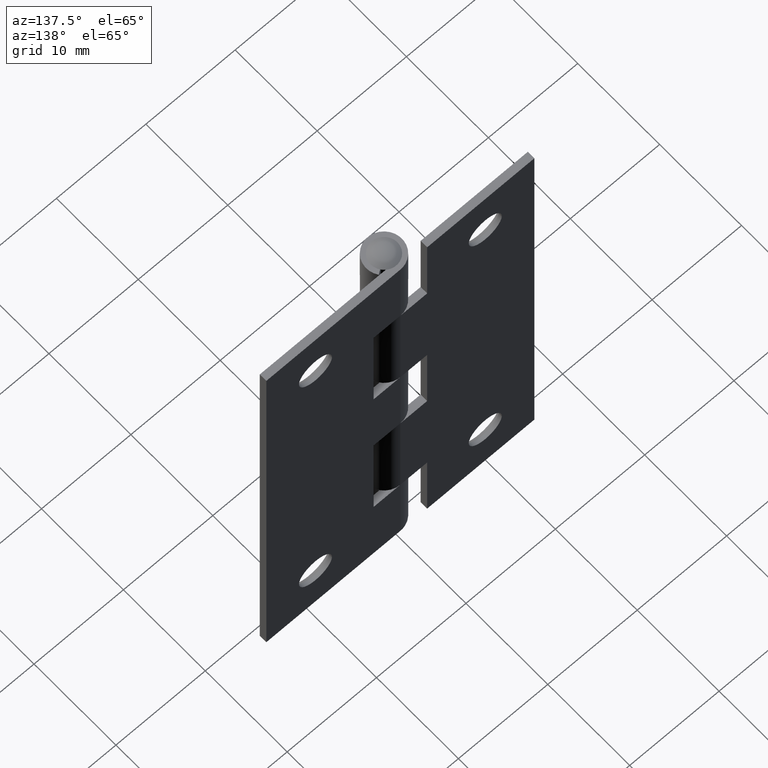
[diagram: clean part render]
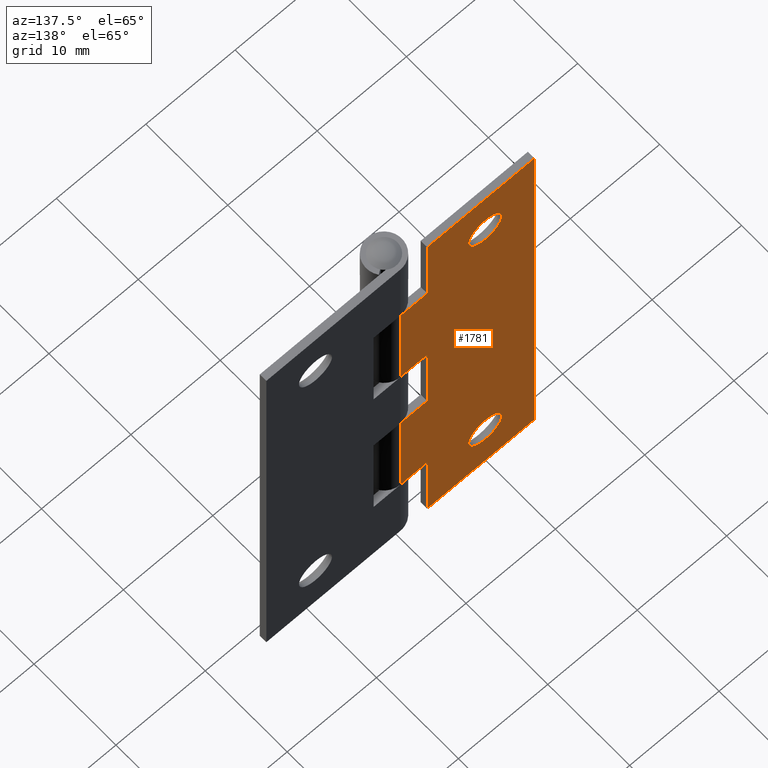
[diagram: same view with one face highlighted and labeled with its STEP entity id]
A machine part, auxiliary view. The second image highlights one B-rep face of the part: STEP entity #1781.
In plain terms, the highlighted face is a freeform B-spline surface patch.
Its self-contained STEP definition (entity closure, byte-faithful):
#396=CARTESIAN_POINT('',(-7.653450622936351,2.000000000008840,45.112939798307671));
#397=VERTEX_POINT('',#396);
#398=CARTESIAN_POINT('',(-9.500000000011600,2.000000000008840,43.149999999881658));
#399=VERTEX_POINT('',#398);
#400=CARTESIAN_POINT('',(-7.653450622936350,2.000000000008841,45.112939798307671));
#401=CARTESIAN_POINT('',(-7.650000000000010,2.000000000008840,45.056522612133499));
#402=CARTESIAN_POINT('',(-7.650000000000010,2.000000000008840,44.999999999893248));
#403=CARTESIAN_POINT('',(-7.650000000000008,2.000000000008840,43.149999999881665));
#404=CARTESIAN_POINT('',(-9.500000000011600,2.000000000008840,43.149999999881658));
#412=(BOUNDED_CURVE()B_SPLINE_CURVE(2,(#400,#401,#402,#403,#404),.UNSPECIFIED.,.F.,.U.)B_SPLINE_CURVE_WITH_KNOTS((3,2,3),(0.239332962216344,0.250000000000000,0.500000000000000),.UNSPECIFIED.)CURVE()GEOMETRIC_REPRESENTATION_ITEM()RATIONAL_B_SPLINE_CURVE((0.976072041618283,0.987502787873361,1.0,0.707106781186548,1.0))REPRESENTATION_ITEM(''));
#413=EDGE_CURVE('',#397,#399,#412,.T.);
#415=CARTESIAN_POINT('',(-11.346549377086850,2.000000000008840,44.887060201478832));
#416=VERTEX_POINT('',#415);
#417=CARTESIAN_POINT('',(-9.500000000011600,2.000000000008840,43.149999999881658));
#418=CARTESIAN_POINT('',(-11.240306223539113,2.000000000008840,43.149999999881658));
#419=CARTESIAN_POINT('',(-11.346549377086848,2.000000000008840,44.887060201478839));
#427=(BOUNDED_CURVE()B_SPLINE_CURVE(2,(#417,#418,#419),.UNSPECIFIED.,.F.,.U.)B_SPLINE_CURVE_WITH_KNOTS((3,3),(0.500000000000000,0.739332962216344),.UNSPECIFIED.)CURVE()GEOMETRIC_REPRESENTATION_ITEM()RATIONAL_B_SPLINE_CURVE((1.0,0.719603993313186,0.976072041618285))REPRESENTATION_ITEM(''));
#428=EDGE_CURVE('',#399,#416,#427,.T.);
#495=CARTESIAN_POINT('',(-9.500000000011600,2.000000000008840,46.849999999904853));
#496=VERTEX_POINT('',#495);
#497=CARTESIAN_POINT('',(-9.500000000011600,2.000000000008840,46.849999999904853));
#498=CARTESIAN_POINT('',(-7.759693776484101,2.000000000008841,46.849999999904846));
#499=CARTESIAN_POINT('',(-7.653450622936349,2.000000000008840,45.112939798307671));
#507=(BOUNDED_CURVE()B_SPLINE_CURVE(2,(#497,#498,#499),.UNSPECIFIED.,.F.,.U.)B_SPLINE_CURVE_WITH_KNOTS((3,3),(0.0,0.239332962216343),.UNSPECIFIED.)CURVE()GEOMETRIC_REPRESENTATION_ITEM()RATIONAL_B_SPLINE_CURVE((1.0,0.719603993313188,0.976072041618282))REPRESENTATION_ITEM(''));
#508=EDGE_CURVE('',#496,#397,#507,.T.);
#542=CARTESIAN_POINT('',(-11.346549377086852,2.000000000008841,44.887060201478832));
#543=CARTESIAN_POINT('',(-11.350000000023192,2.000000000008840,44.943477387653004));
#544=CARTESIAN_POINT('',(-11.350000000023190,2.000000000008840,44.999999999893248));
#545=CARTESIAN_POINT('',(-11.350000000023188,2.000000000008840,46.849999999904838));
#546=CARTESIAN_POINT('',(-9.500000000011600,2.000000000008840,46.849999999904853));
#554=(BOUNDED_CURVE()B_SPLINE_CURVE(2,(#542,#543,#544,#545,#546),.UNSPECIFIED.,.F.,.U.)B_SPLINE_CURVE_WITH_KNOTS((3,2,3),(0.739332962216345,0.750000000000000,1.0),.UNSPECIFIED.)CURVE()GEOMETRIC_REPRESENTATION_ITEM()RATIONAL_B_SPLINE_CURVE((0.976072041618286,0.987502787873362,1.0,0.707106781186548,1.0))REPRESENTATION_ITEM(''));
#555=EDGE_CURVE('',#416,#496,#554,.T.);
#708=CARTESIAN_POINT('',(-7.653450622936351,2.000000000008840,6.112939798307698));
#709=VERTEX_POINT('',#708);
#710=CARTESIAN_POINT('',(-9.500000000011600,2.000000000008840,4.149999999881691));
#711=VERTEX_POINT('',#710);
#712=CARTESIAN_POINT('',(-7.653450622936350,2.000000000008840,6.112939798307697));
#713=CARTESIAN_POINT('',(-7.650000000000010,2.000000000008840,6.056522612133520));
#714=CARTESIAN_POINT('',(-7.650000000000010,2.000000000008840,5.999999999893280));
#715=CARTESIAN_POINT('',(-7.650000000000008,2.000000000008840,4.149999999881689));
#716=CARTESIAN_POINT('',(-9.500000000011600,2.000000000008840,4.149999999881691));
#724=(BOUNDED_CURVE()B_SPLINE_CURVE(2,(#712,#713,#714,#715,#716),.UNSPECIFIED.,.F.,.U.)B_SPLINE_CURVE_WITH_KNOTS((3,2,3),(0.239332962216344,0.250000000000000,0.500000000000000),.UNSPECIFIED.)CURVE()GEOMETRIC_REPRESENTATION_ITEM()RATIONAL_B_SPLINE_CURVE((0.976072041618284,0.987502787873361,1.0,0.707106781186548,1.0))REPRESENTATION_ITEM(''));
#725=EDGE_CURVE('',#709,#711,#724,.T.);
#727=CARTESIAN_POINT('',(-11.346549377086850,2.000000000008840,5.887060201478862));
#728=VERTEX_POINT('',#727);
#729=CARTESIAN_POINT('',(-9.500000000011600,2.000000000008840,4.149999999881691));
#730=CARTESIAN_POINT('',(-11.240306223539108,2.000000000008840,4.149999999881690));
#731=CARTESIAN_POINT('',(-11.346549377086852,2.000000000008840,5.887060201478862));
#739=(BOUNDED_CURVE()B_SPLINE_CURVE(2,(#729,#730,#731),.UNSPECIFIED.,.F.,.U.)B_SPLINE_CURVE_WITH_KNOTS((3,3),(0.500000000000000,0.739332962216344),.UNSPECIFIED.)CURVE()GEOMETRIC_REPRESENTATION_ITEM()RATIONAL_B_SPLINE_CURVE((1.0,0.719603993313187,0.976072041618284))REPRESENTATION_ITEM(''));
#740=EDGE_CURVE('',#711,#728,#739,.T.);
#807=CARTESIAN_POINT('',(-9.500000000011600,2.000000000008840,7.849999999904870));
#808=VERTEX_POINT('',#807);
#809=CARTESIAN_POINT('',(-9.500000000011600,2.000000000008840,7.849999999904870));
#810=CARTESIAN_POINT('',(-7.759693776484091,2.000000000008839,7.849999999904870));
#811=CARTESIAN_POINT('',(-7.653450622936351,2.000000000008840,6.112939798307699));
#819=(BOUNDED_CURVE()B_SPLINE_CURVE(2,(#809,#810,#811),.UNSPECIFIED.,.F.,.U.)B_SPLINE_CURVE_WITH_KNOTS((3,3),(0.0,0.239332962216344),.UNSPECIFIED.)CURVE()GEOMETRIC_REPRESENTATION_ITEM()RATIONAL_B_SPLINE_CURVE((1.0,0.719603993313187,0.976072041618284))REPRESENTATION_ITEM(''));
#820=EDGE_CURVE('',#808,#709,#819,.T.);
#854=CARTESIAN_POINT('',(-11.346549377086852,2.000000000008840,5.887060201478862));
#855=CARTESIAN_POINT('',(-11.350000000023192,2.000000000008840,5.943477387653039));
#856=CARTESIAN_POINT('',(-11.350000000023190,2.000000000008840,5.999999999893280));
#857=CARTESIAN_POINT('',(-11.350000000023188,2.000000000008840,7.849999999904870));
#858=CARTESIAN_POINT('',(-9.500000000011600,2.000000000008840,7.849999999904870));
#866=(BOUNDED_CURVE()B_SPLINE_CURVE(2,(#854,#855,#856,#857,#858),.UNSPECIFIED.,.F.,.U.)B_SPLINE_CURVE_WITH_KNOTS((3,2,3),(0.739332962216344,0.750000000000000,1.0),.UNSPECIFIED.)CURVE()GEOMETRIC_REPRESENTATION_ITEM()RATIONAL_B_SPLINE_CURVE((0.976072041618284,0.987502787873361,1.0,0.707106781186548,1.0))REPRESENTATION_ITEM(''));
#867=EDGE_CURVE('',#728,#808,#866,.T.);
#1349=CARTESIAN_POINT('',(-3.0,1.999999999982680,1.919301E-012));
#1350=VERTEX_POINT('',#1349);
#1356=CARTESIAN_POINT('',(-2.999999999999945,1.999999999982680,9.000000000001990));
#1357=VERTEX_POINT('',#1356);
#1358=CARTESIAN_POINT('',(-3.0,1.999999999982680,1.919301E-012));
#1359=CARTESIAN_POINT('',(-2.999999999999945,1.999999999982680,9.000000000001990));
#1360=QUASI_UNIFORM_CURVE('',1,(#1358,#1359),.UNSPECIFIED.,.F.,.U.);
#1361=EDGE_CURVE('',#1350,#1357,#1360,.T.);
#1378=CARTESIAN_POINT('',(-1.159619E-011,1.999999999982680,9.0));
#1379=VERTEX_POINT('',#1378);
#1380=CARTESIAN_POINT('',(-2.999999999999945,1.999999999982680,9.000000000001990));
#1381=CARTESIAN_POINT('',(-1.159619E-011,1.999999999982680,9.0));
#1382=QUASI_UNIFORM_CURVE('',1,(#1380,#1381),.UNSPECIFIED.,.F.,.U.);
#1383=EDGE_CURVE('',#1357,#1379,#1382,.T.);
#1427=CARTESIAN_POINT('',(-2.999999999999945,1.999999999982680,42.000000000001997));
#1428=VERTEX_POINT('',#1427);
#1434=CARTESIAN_POINT('',(-3.0,2.000000000003465,51.000000000001997));
#1435=VERTEX_POINT('',#1434);
#1436=CARTESIAN_POINT('',(-2.999999999999945,1.999999999982680,42.000000000001997));
#1437=CARTESIAN_POINT('',(-3.0,2.000000000003465,51.000000000001997));
#1438=QUASI_UNIFORM_CURVE('',1,(#1436,#1437),.UNSPECIFIED.,.F.,.U.);
#1439=EDGE_CURVE('',#1428,#1435,#1438,.T.);
#1457=CARTESIAN_POINT('',(-1.159619E-011,1.999999999982680,42.0));
#1458=VERTEX_POINT('',#1457);
#1489=CARTESIAN_POINT('',(-1.159619E-011,1.999999999982680,42.0));
#1490=CARTESIAN_POINT('',(-2.999999999999945,1.999999999982680,42.000000000001997));
#1491=QUASI_UNIFORM_CURVE('',1,(#1489,#1490),.UNSPECIFIED.,.F.,.U.);
#1492=EDGE_CURVE('',#1458,#1428,#1491,.T.);
#1507=CARTESIAN_POINT('',(-1.159619E-011,1.999999999982680,21.0));
#1508=VERTEX_POINT('',#1507);
#1538=CARTESIAN_POINT('',(-3.0,1.999999999982680,21.000000000000799));
#1539=VERTEX_POINT('',#1538);
#1540=CARTESIAN_POINT('',(-3.0,1.999999999982680,21.000000000000799));
#1541=CARTESIAN_POINT('',(-1.159619E-011,1.999999999982680,21.0));
#1542=QUASI_UNIFORM_CURVE('',1,(#1540,#1541),.UNSPECIFIED.,.F.,.U.);
#1543=EDGE_CURVE('',#1539,#1508,#1542,.T.);
#1559=CARTESIAN_POINT('',(-3.0,1.999999999982680,30.0));
#1560=VERTEX_POINT('',#1559);
#1566=CARTESIAN_POINT('',(-1.159619E-011,1.999999999982680,30.0));
#1567=VERTEX_POINT('',#1566);
#1568=CARTESIAN_POINT('',(-1.159619E-011,1.999999999982680,30.0));
#1569=CARTESIAN_POINT('',(-3.0,1.999999999982680,30.0));
#1570=QUASI_UNIFORM_CURVE('',1,(#1568,#1569),.UNSPECIFIED.,.F.,.U.);
#1571=EDGE_CURVE('',#1567,#1560,#1570,.T.);
#1615=CARTESIAN_POINT('',(-3.0,1.999999999982680,30.0));
#1616=CARTESIAN_POINT('',(-3.0,1.999999999982680,21.000000000000799));
#1617=QUASI_UNIFORM_CURVE('',1,(#1615,#1616),.UNSPECIFIED.,.F.,.U.);
#1618=EDGE_CURVE('',#1560,#1539,#1617,.T.);
#1631=CARTESIAN_POINT('',(-15.000000000011600,2.000000000017335,1.998401E-012));
#1632=VERTEX_POINT('',#1631);
#1638=CARTESIAN_POINT('',(-3.0,1.999999999982680,1.919301E-012));
#1639=CARTESIAN_POINT('',(-15.000000000011600,2.000000000017335,1.998401E-012));
#1640=QUASI_UNIFORM_CURVE('',1,(#1638,#1639),.UNSPECIFIED.,.F.,.U.);
#1641=EDGE_CURVE('',#1350,#1632,#1640,.T.);
#1653=CARTESIAN_POINT('',(-15.000000000011600,2.000000000017335,51.000000000001897));
#1654=VERTEX_POINT('',#1653);
#1655=CARTESIAN_POINT('',(-3.0,2.000000000003465,51.000000000001997));
#1656=CARTESIAN_POINT('',(-15.000000000011600,2.000000000017335,51.000000000001897));
#1657=QUASI_UNIFORM_CURVE('',1,(#1655,#1656),.UNSPECIFIED.,.F.,.U.);
#1658=EDGE_CURVE('',#1435,#1654,#1657,.T.);
#1676=CARTESIAN_POINT('',(-15.000000000011600,2.000000000017335,51.000000000001897));
#1677=CARTESIAN_POINT('',(-15.000000000011600,2.000000000017335,1.998401E-012));
#1678=QUASI_UNIFORM_CURVE('',1,(#1676,#1677),.UNSPECIFIED.,.F.,.U.);
#1679=EDGE_CURVE('',#1654,#1632,#1678,.T.);
#1707=CARTESIAN_POINT('',(-1.159619E-011,1.999999999982680,21.0));
#1708=CARTESIAN_POINT('',(-1.159619E-011,1.999999999982680,9.0));
#1709=QUASI_UNIFORM_CURVE('',1,(#1707,#1708),.UNSPECIFIED.,.F.,.U.);
#1710=EDGE_CURVE('',#1508,#1379,#1709,.T.);
#1742=CARTESIAN_POINT('',(-1.159619E-011,1.999999999982680,42.0));
#1743=CARTESIAN_POINT('',(-1.159619E-011,1.999999999982680,30.0));
#1744=QUASI_UNIFORM_CURVE('',1,(#1742,#1743),.UNSPECIFIED.,.F.,.U.);
#1745=EDGE_CURVE('',#1458,#1567,#1744,.T.);
#1750=CARTESIAN_POINT('',(-15.749249970938690,2.000000000018204,-2.547449901150191));
#1751=CARTESIAN_POINT('',(0.749250373246845,1.999999999999135,-2.547449901150191));
#1752=CARTESIAN_POINT('',(-15.749249970938690,2.000000000018204,53.547451269080703));
#1753=CARTESIAN_POINT('',(0.749250373246845,1.999999999999135,53.547451269080703));
#1754=B_SPLINE_SURFACE_WITH_KNOTS('',1,1,((#1750,#1752),(#1751,#1753)),.UNSPECIFIED.,.F.,.F.,.U.,(2,2),(2,2),(0.0,16.498500344185530),(0.0,56.094901170230891),.UNSPECIFIED.);
#1755=ORIENTED_EDGE('',*,*,#1383,.F.);
#1756=ORIENTED_EDGE('',*,*,#1361,.F.);
#1757=ORIENTED_EDGE('',*,*,#1641,.T.);
#1758=ORIENTED_EDGE('',*,*,#1679,.F.);
#1759=ORIENTED_EDGE('',*,*,#1658,.F.);
#1760=ORIENTED_EDGE('',*,*,#1439,.F.);
#1761=ORIENTED_EDGE('',*,*,#1492,.F.);
#1762=ORIENTED_EDGE('',*,*,#1745,.T.);
#1763=ORIENTED_EDGE('',*,*,#1571,.T.);
#1764=ORIENTED_EDGE('',*,*,#1618,.T.);
#1765=ORIENTED_EDGE('',*,*,#1543,.T.);
#1766=ORIENTED_EDGE('',*,*,#1710,.T.);
#1767=EDGE_LOOP('',(#1755,#1756,#1757,#1758,#1759,#1760,#1761,#1762,#1763,#1764,#1765,#1766));
#1768=FACE_OUTER_BOUND('',#1767,.T.);
#1769=ORIENTED_EDGE('',*,*,#740,.F.);
#1770=ORIENTED_EDGE('',*,*,#725,.F.);
#1771=ORIENTED_EDGE('',*,*,#820,.F.);
#1772=ORIENTED_EDGE('',*,*,#867,.F.);
#1773=EDGE_LOOP('',(#1769,#1770,#1771,#1772));
#1774=FACE_BOUND('',#1773,.T.);
#1775=ORIENTED_EDGE('',*,*,#428,.F.);
#1776=ORIENTED_EDGE('',*,*,#413,.F.);
#1777=ORIENTED_EDGE('',*,*,#508,.F.);
#1778=ORIENTED_EDGE('',*,*,#555,.F.);
#1779=EDGE_LOOP('',(#1775,#1776,#1777,#1778));
#1780=FACE_BOUND('',#1779,.T.);
#1781=ADVANCED_FACE('',(#1768,#1774,#1780),#1754,.F.);